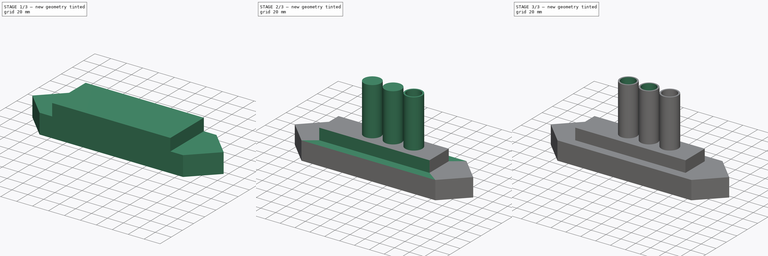
[diagram: build sequence overview — one tinted view per stage of 3, left to right]
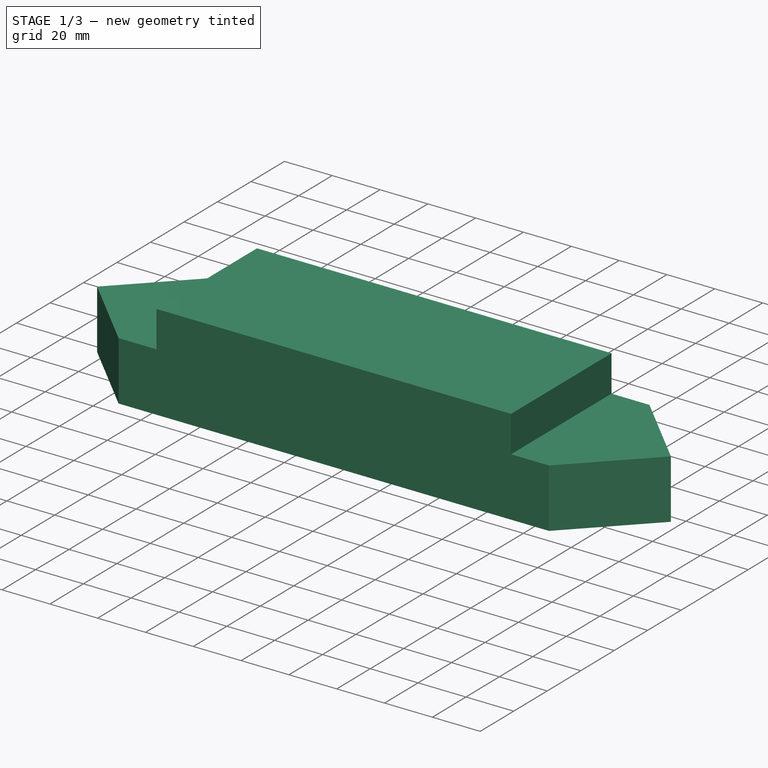
[diagram: stage 1 of 3 — iso view after this stage's code; geometry added in this stage tinted green]
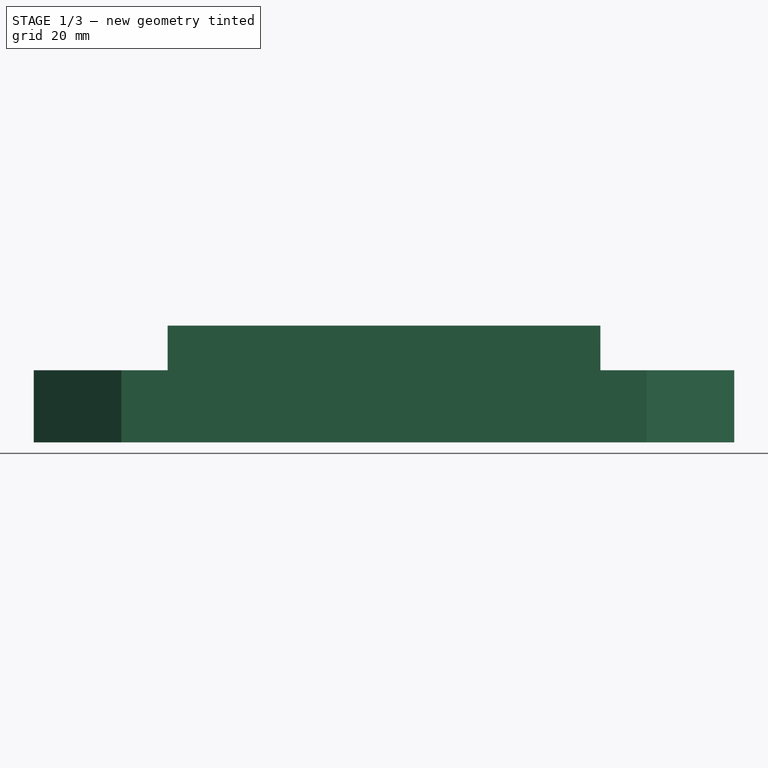
[diagram: stage 1 of 3 — front view after this stage's code; geometry added in this stage tinted green]
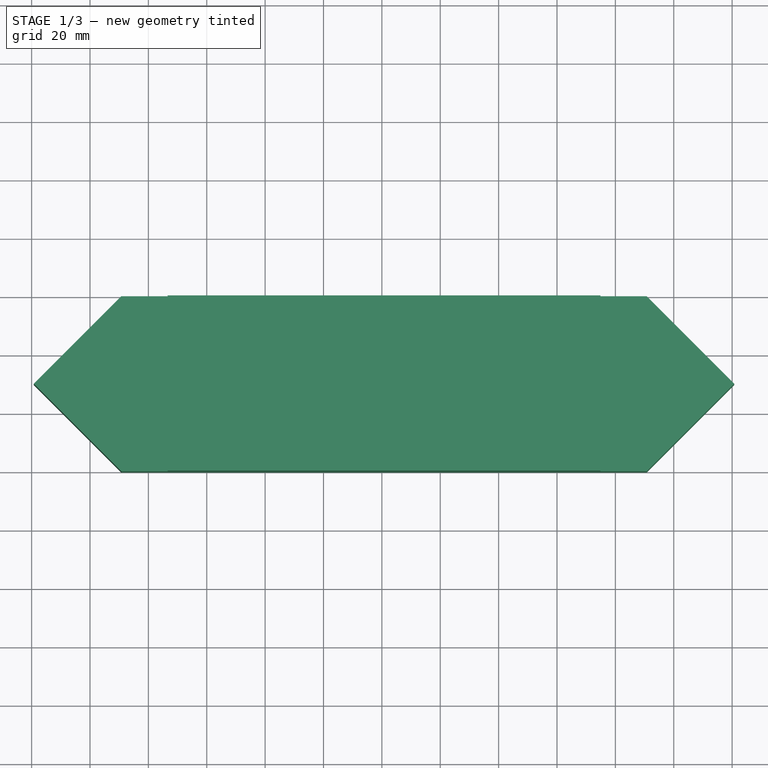
[diagram: stage 1 of 3 — top view after this stage's code; geometry added in this stage tinted green]
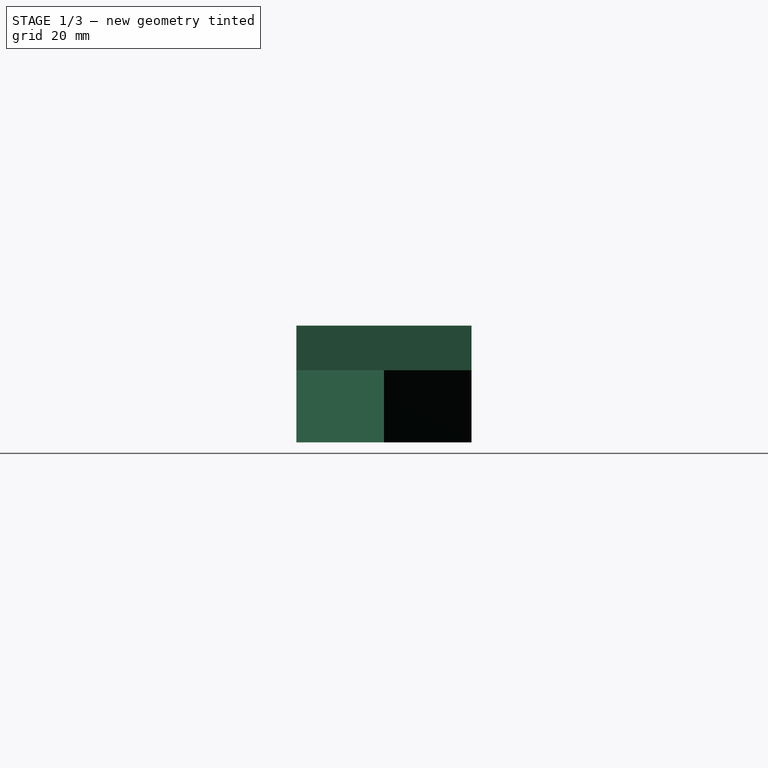
[diagram: stage 1 of 3 — right view after this stage's code; geometry added in this stage tinted green]
FCSTD DOCUMENT  (FreeCAD 1.1R38894 (Git))
Label: Кораблик
License: All rights reserved
LicenseURL: https://en.wikipedia.org/wiki/All_rights_reserved
objects: Sketcher::SketchObject×4, PartDesign::SubtractiveCylinder×3, PartDesign::Pad×2, PartDesign::Pocket×2, PartDesign::Body×1
note: 30 computed .brp shape members not serialized (recipe doc carries the construction recipe); baked Part::Feature solids carry a one-line shape summary decoded from their .brp

FEATURE [Sketcher::SketchObject] Sketch
  ArcFitTolerance = 1e-06
  AttachmentSupport = -> [XZ_Plane]
  FullyConstrained = false
  MakeInternals = false
  MapMode = 5
  Placement = pos=(0,0,0) rot=(1,0,0;1.5708rad)
  sketch-geometry (8):
    g0: LineSegment StartX=-119.28 StartY=4.42707 StartZ=0 EndX=-119.28 EndY=-20.3029 EndZ=0
    g1: LineSegment StartX=-119.28 StartY=-20.3029 StartZ=0 EndX=120.72 EndY=-20.3029 EndZ=0
    g2: LineSegment StartX=120.72 StartY=-20.3029 StartZ=0 EndX=120.72 EndY=4.42707 EndZ=0
    g3: LineSegment StartX=120.72 StartY=4.42707 StartZ=0 EndX=74.8703 EndY=4.42707 EndZ=0
    g4: LineSegment StartX=74.8703 StartY=4.42707 StartZ=0 EndX=74.8703 EndY=19.6971 EndZ=0
    g5: LineSegment StartX=74.8703 StartY=19.6971 StartZ=0 EndX=-73.4297 EndY=19.6971 EndZ=0
    g6: LineSegment StartX=-73.4297 StartY=19.6971 StartZ=0 EndX=-73.4297 EndY=4.42707 EndZ=0
    g7: LineSegment StartX=-73.4297 StartY=4.42707 StartZ=0 EndX=-119.28 EndY=4.42707 EndZ=0
  constraints (22):
    c: Coincident(g0,g1)
    c: Horizontal(g1)
    c: Coincident(g1,g2)
    c: Coincident(g2,g3)
    c: Horizontal(g3)
    c: Coincident(g3,g4)
    c: Coincident(g4,g5)
    c: Horizontal(g5)
    c: Coincident(g5,g6)
    c: Coincident(g6,g7)
    c: Coincident(g7,g0)
    c: Vertical(g0)
    c: Horizontal(g7)
    c: Vertical(g2)
    c: Vertical(g4)
    c: Horizontal(g3,g6)
    c: Vertical(g6)
    c: DistanceY(g2,g2) = 24.73
    c: DistanceX(g1,g1) = 240
    c: DistanceX(g7,g7) = 45.85
    c: Equal(g7,g3)
    c: Distance(g4,g4) = 15.27
FEATURE [PartDesign::Pad] Pad
  Direction = (0,-1,2e-16)
  Length = 60
  Length2 = 10
  Placement = pos=(0,0,0) rot=(1,0,0;1.5708rad)
  Profile = -> Sketch
  ReferenceAxis = -> Sketch [N_Axis]
  Refine = true
  Suppressed = false
  Type = 0
FEATURE [Sketcher::SketchObject] Sketch001
  ArcFitTolerance = 1e-06
  AttachmentSupport = -> [XY_Plane]
  ExternalGeometry = -> [Pad]
  FullyConstrained = false
  MakeInternals = false
  MapMode = 5
  sketch-geometry (13):
    g0: LineSegment StartX=-89.2797 StartY=0 StartZ=0 EndX=-119.28 EndY=-30 EndZ=0
    g1: LineSegment StartX=-119.28 StartY=-30 StartZ=0 EndX=-89.2797 EndY=-60 EndZ=0
    g2: LineSegment StartX=90.7203 StartY=0 StartZ=0 EndX=120.72 EndY=-30 EndZ=0
    g3: LineSegment StartX=90.7203 StartY=-60 StartZ=0 EndX=120.72 EndY=-30 EndZ=0
    g4: LineSegment StartX=120.72 StartY=4e-16 StartZ=0 EndX=90.7203 EndY=0 EndZ=0
    g5: LineSegment StartX=120.72 StartY=-60 StartZ=0 EndX=90.7203 EndY=-60 EndZ=0
    g6: LineSegment StartX=-89.2797 StartY=0 StartZ=0 EndX=-119.28 EndY=4e-16 EndZ=0
    g7: LineSegment StartX=-119.28 StartY=4e-16 StartZ=0 EndX=-119.28 EndY=-30 EndZ=0
    g8: LineSegment StartX=-119.28 StartY=-60 StartZ=0 EndX=-119.28 EndY=-30 EndZ=0
    g9: LineSegment StartX=-89.2797 StartY=-60 StartZ=0 EndX=-119.28 EndY=-60 EndZ=0
    g10: LineSegment StartX=120.72 StartY=4e-16 StartZ=0 EndX=120.72 EndY=-30 EndZ=0
    g11: LineSegment StartX=120.72 StartY=-30 StartZ=0 EndX=120.72 EndY=-60 EndZ=0
    g12: LineSegment [constr] StartX=0.720283 StartY=39.9072 StartZ=0 EndX=0.720283 EndY=-70.8606 EndZ=0
  constraints (29):
    c: Coincident(g0,g1)
    c: Equal(g1,g0)
    c: Angle(g0,g-3) = 0.785398
    c: PointOnObject(g0,g-1)
    c: Horizontal(g1,g-3)
    c: Symmetric(g-3,g-3,g0)
    c: Symmetric(g-6,g-6,g2)
    c: Coincident(g3,g2)
    c: Coincident(g4,g-6)
    c: Coincident(g6,g0)
    c: Coincident(g6,g-3)
    c: Coincident(g7,g6)
    c: Coincident(g7,g0)
    c: Coincident(g8,g-3)
    c: Coincident(g8,g0)
    c: Coincident(g9,g1)
    c: Coincident(g9,g8)
    c: Coincident(g10,g4)
    c: Coincident(g10,g2)
    c: Coincident(g11,g2)
    c: Coincident(g11,g5)
    c: Coincident(g2,g4)
    c: Symmetric(g2,g0,g12)
    c: Equal(g2,g0)
    c: Vertical(g12)
    c: Coincident(g5,g3)
    c: PointOnObject(g3,g-4)
    c: Equal(g3,g2)
    c: Coincident(g5,g-6)
FEATURE [PartDesign::Pocket] Pocket
  BaseFeature = -> Pad
  Direction = (0,0,-1)
  Length = 48
  Length2 = 46
  Placement = pos=(0,0,0) rot=(1,0,0;1.5708rad)
  Profile = -> Sketch001
  ReferenceAxis = -> Sketch001 [N_Axis]
  Refine = true
  Suppressed = false
  Type = 4
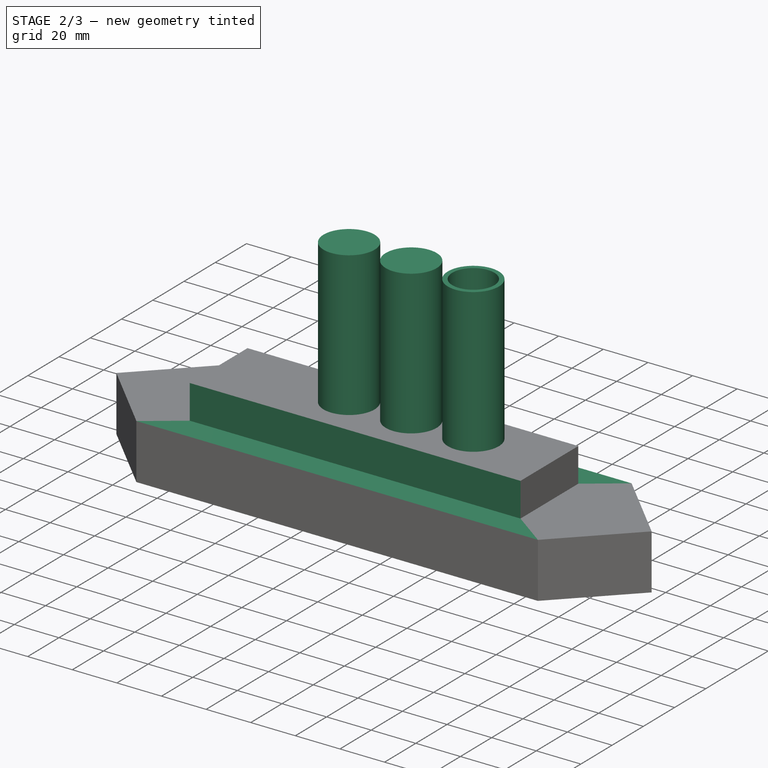
[diagram: stage 2 of 3 — iso view after this stage's code; geometry added in this stage tinted green]
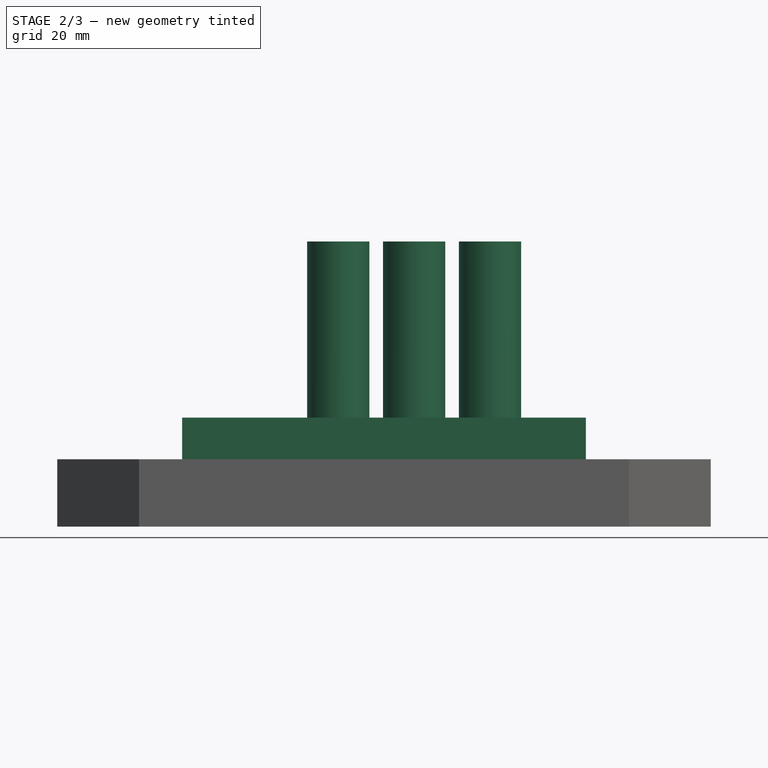
[diagram: stage 2 of 3 — front view after this stage's code; geometry added in this stage tinted green]
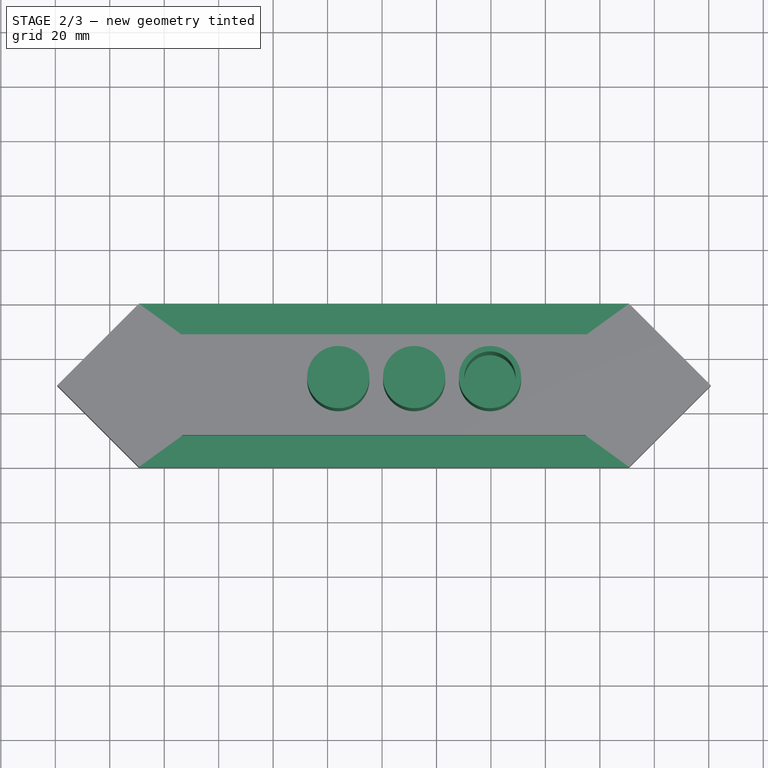
[diagram: stage 2 of 3 — top view after this stage's code; geometry added in this stage tinted green]
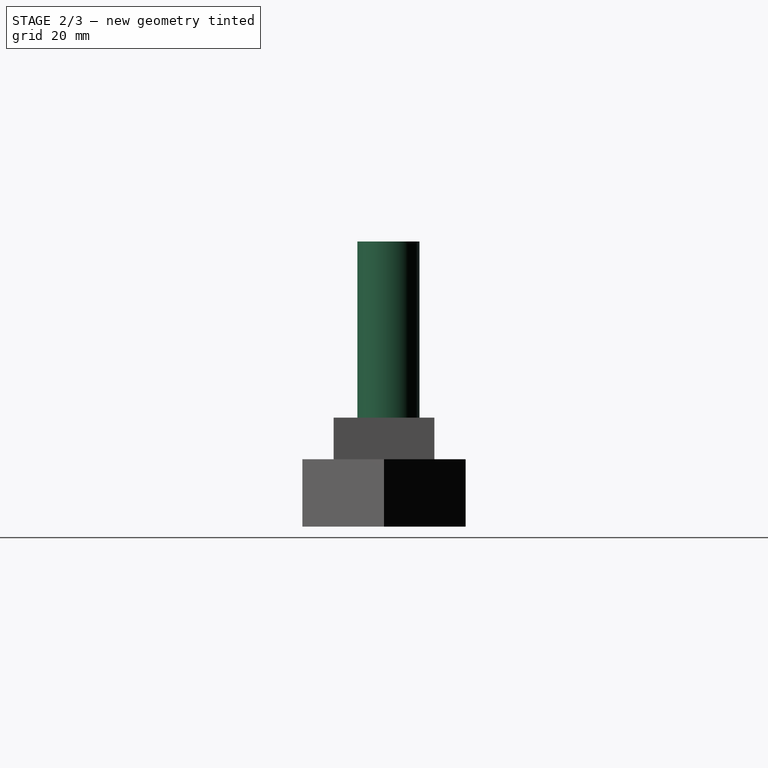
[diagram: stage 2 of 3 — right view after this stage's code; geometry added in this stage tinted green]
FEATURE [Sketcher::SketchObject] Sketch002
  ArcFitTolerance = 1e-06
  AttachmentSupport = -> [Pocket]
  ExternalGeometry = -> [Pocket]
  FullyConstrained = true
  MakeInternals = false
  MapMode = 5
  Placement = pos=(0,4.4e-15,19.6971) rot=(0,0,1;3.14159rad)
  sketch-geometry (8):
    g0: LineSegment StartX=-74.8703 StartY=60 StartZ=0 EndX=-74.8703 EndY=48.5 EndZ=0
    g1: LineSegment StartX=-74.8703 StartY=48.5 StartZ=0 EndX=73.4297 EndY=48.5 EndZ=0
    g2: LineSegment StartX=73.4297 StartY=48.5 StartZ=0 EndX=73.4297 EndY=60 EndZ=0
    g3: LineSegment StartX=73.4297 StartY=60 StartZ=0 EndX=-74.8703 EndY=60 EndZ=0
    g4: LineSegment StartX=73.4297 StartY=0 StartZ=0 EndX=73.4297 EndY=11.5 EndZ=0
    g5: LineSegment StartX=73.4297 StartY=11.5 StartZ=0 EndX=-74.8703 EndY=11.5 EndZ=0
    g6: LineSegment StartX=-74.8703 StartY=11.5 StartZ=0 EndX=-74.8703 EndY=0 EndZ=0
    g7: LineSegment StartX=-74.8703 StartY=0 StartZ=0 EndX=73.4297 EndY=0 EndZ=0
  constraints (22):
    c: Coincident(g0,g1)
    c: Coincident(g1,g2)
    c: Coincident(g2,g3)
    c: Coincident(g3,g0)
    c: Vertical(g0)
    c: Vertical(g2)
    c: Horizontal(g1)
    c: Horizontal(g3)
    c: Coincident(g0,g-3)
    c: PointOnObject(g1,g-4)
    c: Coincident(g4,g5)
    c: Coincident(g5,g6)
    c: Coincident(g6,g7)
    c: Coincident(g7,g4)
    c: Vertical(g4)
    c: Vertical(g6)
    c: Horizontal(g5)
    c: Horizontal(g7)
    c: Coincident(g4,g-4)
    c: PointOnObject(g5,g-3)
    c: Equal(g6,g0)
    c: DistanceY(g5,g0) = 37
FEATURE [PartDesign::Pocket] Pocket001
  BaseFeature = -> Pocket
  Direction = (0,0,-1)
  Length = 0
  Length2 = 5
  Placement = pos=(0,0,0) rot=(1,0,0;1.5708rad)
  Profile = -> Sketch002
  ReferenceAxis = -> Sketch002 [N_Axis]
  Refine = true
  Suppressed = false
  Type = 3
  UpToFace = -> Pocket [Face10]
FEATURE [Sketcher::SketchObject] Sketch003
  ArcFitTolerance = 1e-06
  AttachmentSupport = -> [Pocket001]
  ExternalGeometry = -> [Pocket001]
  FullyConstrained = false
  MakeInternals = false
  MapMode = 5
  Placement = pos=(0,4.4e-15,19.6971) rot=(0,0,1;3.14159rad)
  sketch-geometry (3):
    g0: Circle CenterX=-39.6403 CenterY=28.3698 CenterZ=0 NormalX=0 NormalY=0 NormalZ=1 AngleXU=0 Radius=11.43
    g1: Circle CenterX=-11.7803 CenterY=28.3698 CenterZ=0 NormalX=0 NormalY=0 NormalZ=1 AngleXU=0 Radius=11.43
    g2: Circle CenterX=16.0797 CenterY=28.3698 CenterZ=0 NormalX=0 NormalY=0 NormalZ=1 AngleXU=0 Radius=11.43
  constraints (8):
    c: Diameter(g0) = 22.86
    c: Distance(g0,g1) = 5
    c: Equal(g1,g0)
    c: Equal(g0,g2)
    c: Distance(g1,g2) = 5
    c: Horizontal(g1,g0)
    c: Horizontal(g1,g2)
    c: Distance(g0,g-3) = 23.8
FEATURE [PartDesign::Pad] Pad001
  BaseFeature = -> Pocket001
  Direction = (0,0,1)
  Length = 64.72
  Length2 = 10
  Placement = pos=(0,0,0) rot=(1,0,0;1.5708rad)
  Profile = -> Sketch003
  ReferenceAxis = -> Sketch003 [N_Axis]
  Refine = true
  Suppressed = false
  Type = 0
FEATURE [PartDesign::SubtractiveCylinder] Cylinder
  Angle = 360
  AttacherType = Attacher::AttachEngine3D
  AttachmentOffset = pos=(0,0,-79.99) rot=(0,0,1;0rad)
  AttachmentSupport = -> [Pad001]
  BaseFeature = -> Pad001
  FirstAngle = 0
  Height = 79.99
  MapMode = 45
  Placement = pos=(39.6403,-28.3698,4.42707) rot=(0,0,1;0rad)
  Radius = 9.43
  Refine = true
  SecondAngle = 0
  Suppressed = false
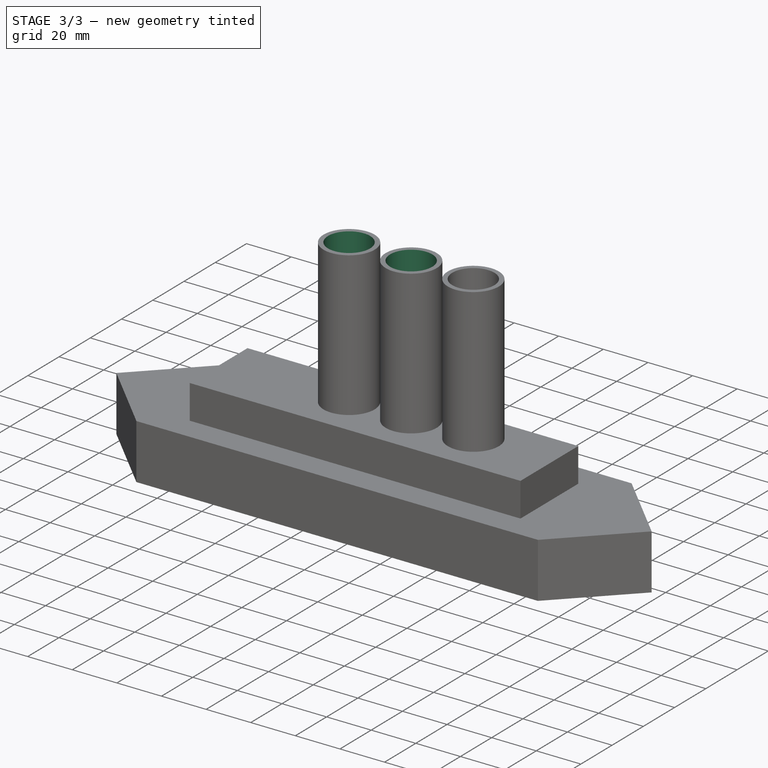
[diagram: stage 3 of 3 — iso view after this stage's code; geometry added in this stage tinted green]
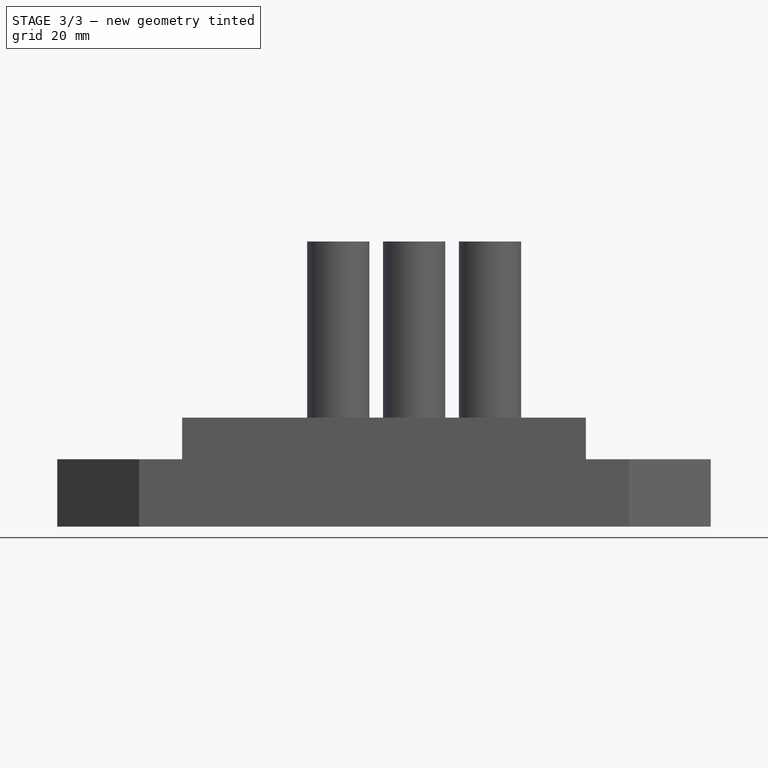
[diagram: stage 3 of 3 — front view after this stage's code; geometry added in this stage tinted green]
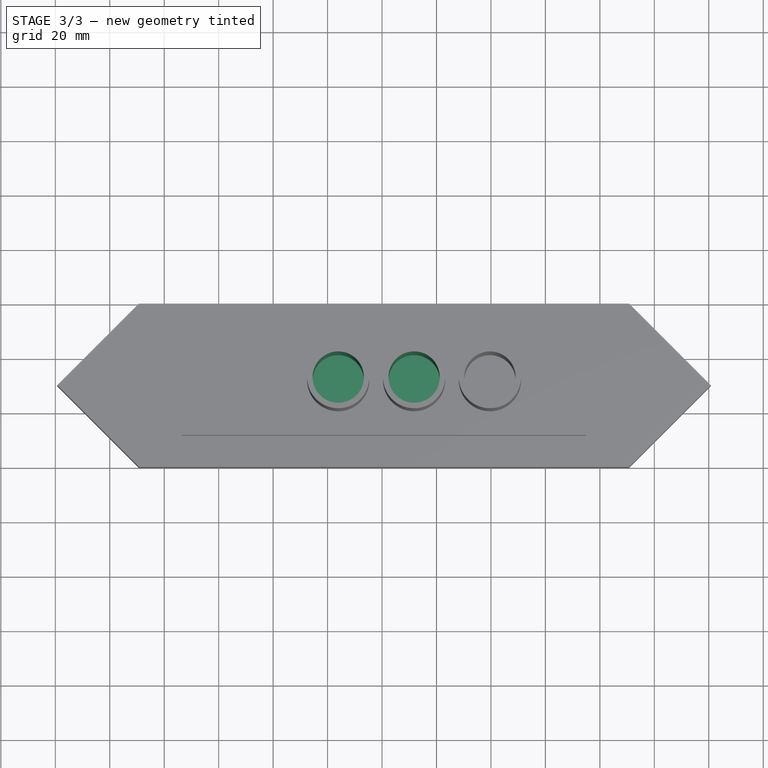
[diagram: stage 3 of 3 — top view after this stage's code; geometry added in this stage tinted green]
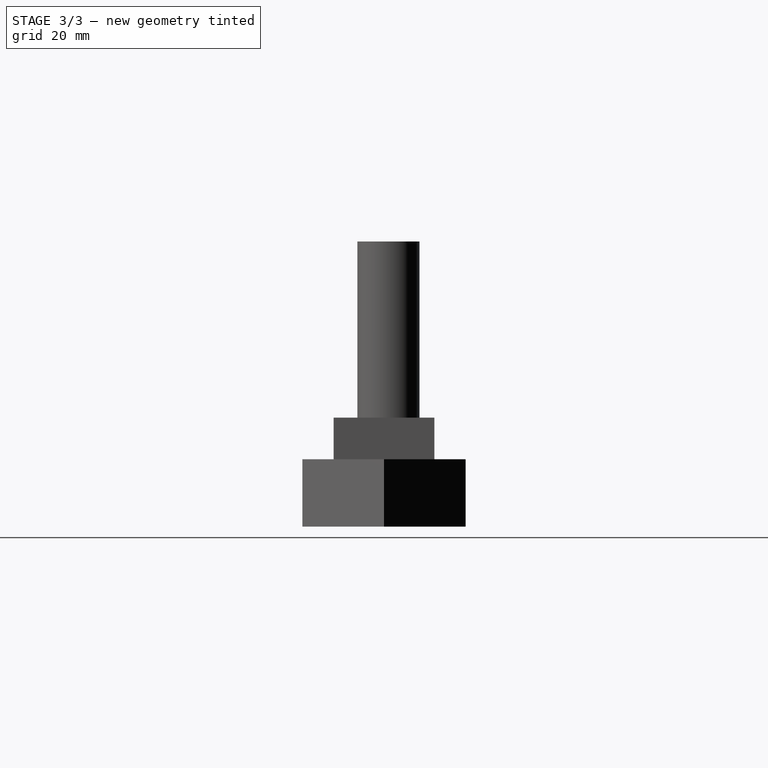
[diagram: stage 3 of 3 — right view after this stage's code; geometry added in this stage tinted green]
FEATURE [PartDesign::SubtractiveCylinder] Cylinder001
  Angle = 360
  AttacherType = Attacher::AttachEngine3D
  AttachmentOffset = pos=(0,0,-79.99) rot=(0,0,1;0rad)
  AttachmentSupport = -> [Cylinder]
  BaseFeature = -> Cylinder
  FirstAngle = 0
  Height = 79.99
  MapMode = 45
  Placement = pos=(11.7803,-28.3698,4.42707) rot=(0,0,1;0rad)
  Radius = 9.43
  Refine = true
  SecondAngle = 0
  Suppressed = false
FEATURE [PartDesign::SubtractiveCylinder] Cylinder002
  Angle = 360
  AttacherType = Attacher::AttachEngine3D
  AttachmentOffset = pos=(0,0,-79.99) rot=(0,0,1;0rad)
  AttachmentSupport = -> [Cylinder001]
  BaseFeature = -> Cylinder001
  FirstAngle = 0
  Height = 79.99
  MapMode = 45
  Placement = pos=(-16.0797,-28.3698,4.42707) rot=(0,0,1;0rad)
  Radius = 9.43
  Refine = true
  SecondAngle = 0
  Suppressed = false
FEATURE [PartDesign::Body] Body  label="Тело"
  AllowCompound = false
  Group = -> [Sketch,Pad,Sketch001,Pocket,Sketch002,Pocket001,Sketch003,Pad001,Cylinder,Cylinder001,Cylinder002]
  Origin = -> Origin
  Tip = -> Cylinder002
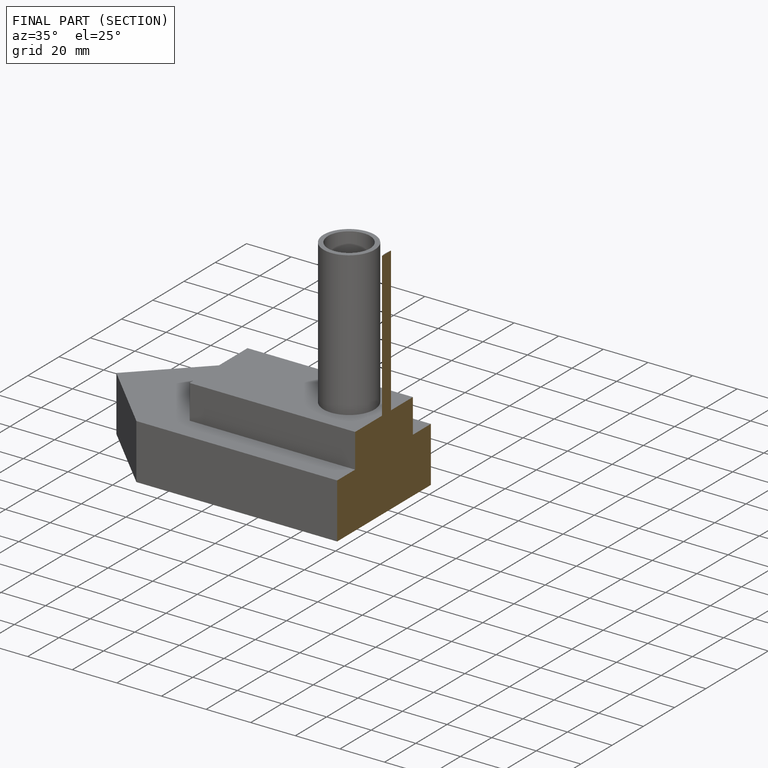
[diagram: finished part — half-section view (interior)]
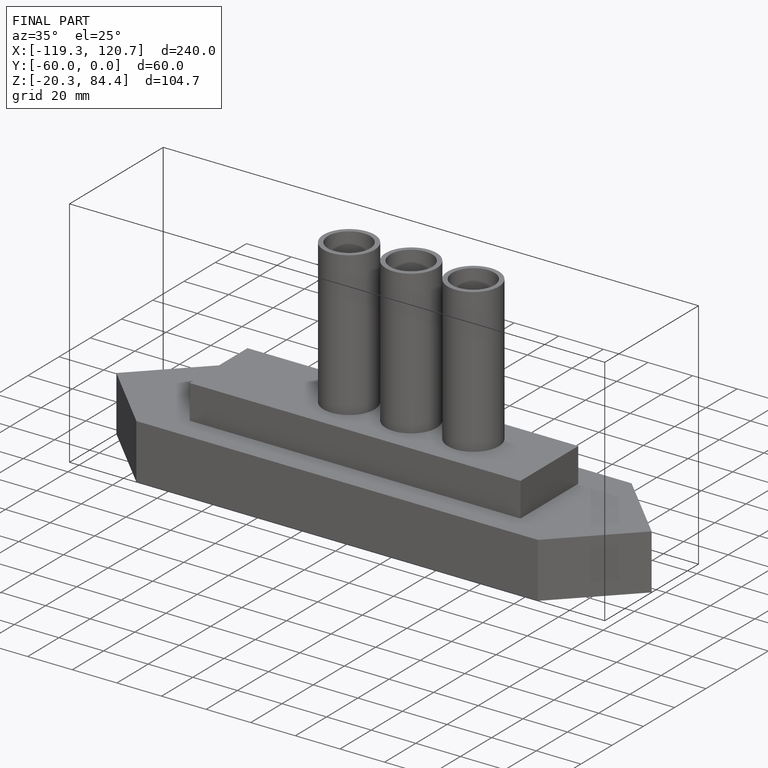
[diagram: finished part — iso view with bounding-box wireframe]
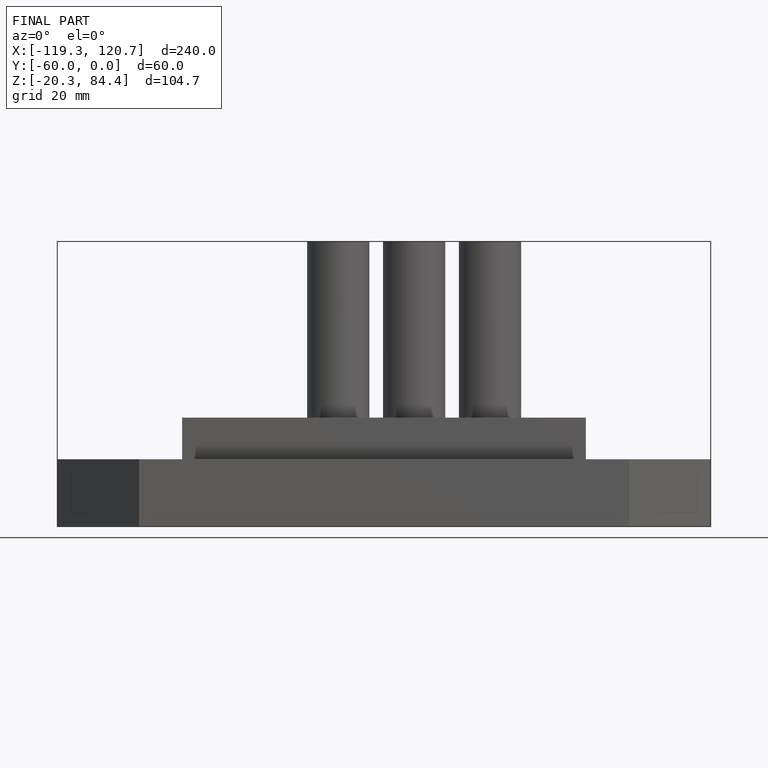
[diagram: finished part — front view with bounding-box wireframe]
